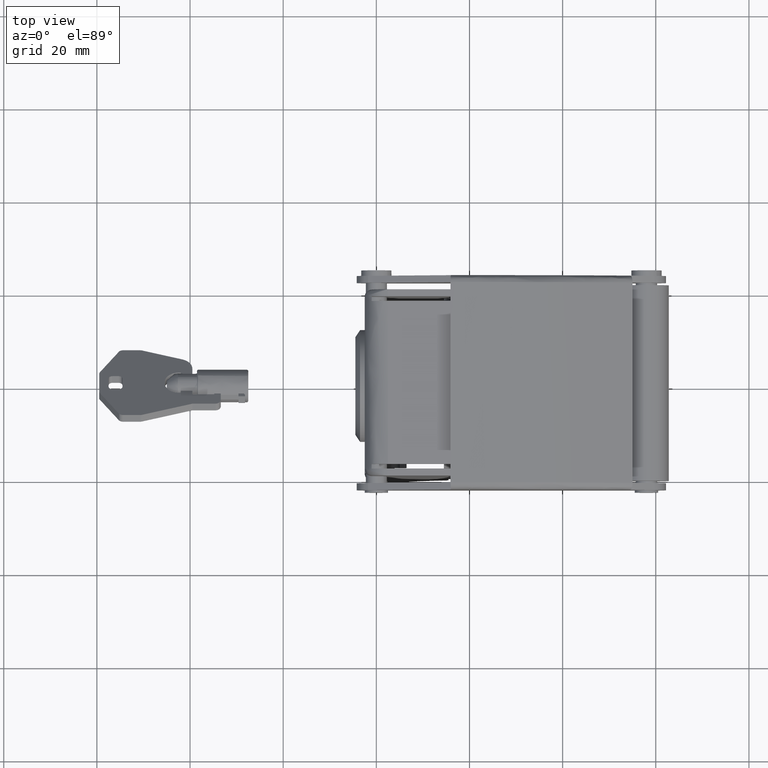
[diagram: clean part render]
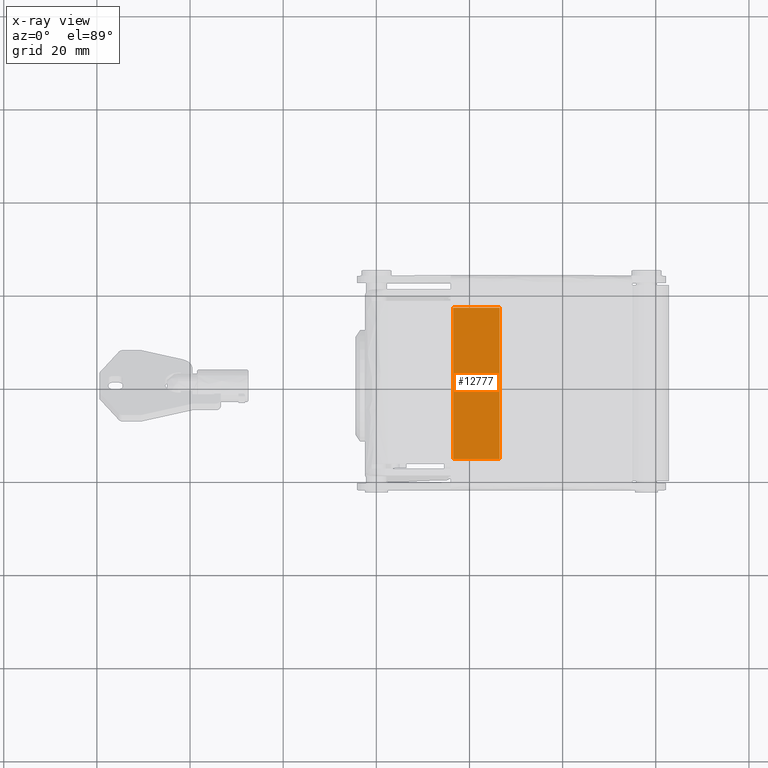
[diagram: x-ray — body ghosted, one internal face saturated and labeled with its STEP entity id]
A machine part, top view, then the same camera in x-ray: the body is ghosted and one INTERNAL B-rep face — a face not visible from any outside direction — is saturated and labeled: STEP entity #12777.
In plain terms, the highlighted face is a freeform B-spline surface patch.
Its self-contained STEP definition (entity closure, byte-faithful):
#11950=CARTESIAN_POINT('',(17.499776932377401,-16.249999999788500,-2.799992232599805));
#11951=VERTEX_POINT('',#11950);
#11980=CARTESIAN_POINT('',(26.499776932377351,-16.249999999992099,-2.799992232691465));
#11981=VERTEX_POINT('',#11980);
#11987=CARTESIAN_POINT('',(26.499776932377351,-16.249999999992099,-2.799992232691465));
#11988=CARTESIAN_POINT('',(17.499776932377401,-16.249999999788500,-2.799992232599805));
#11989=QUASI_UNIFORM_CURVE('',1,(#11987,#11988),.UNSPECIFIED.,.F.,.U.);
#11990=EDGE_CURVE('',#11981,#11951,#11989,.T.);
#12158=CARTESIAN_POINT('',(17.499776932377500,16.250000000007901,-2.799992232599805));
#12159=VERTEX_POINT('',#12158);
#12643=CARTESIAN_POINT('',(16.499774046851549,-16.249999999788500,-2.799992232599805));
#12644=VERTEX_POINT('',#12643);
#12645=CARTESIAN_POINT('',(16.499774046851549,-16.249999999788500,-2.799992232599805));
#12646=CARTESIAN_POINT('',(17.499776932377401,-16.249999999788500,-2.799992232599805));
#12647=QUASI_UNIFORM_CURVE('',1,(#12645,#12646),.UNSPECIFIED.,.F.,.U.);
#12648=EDGE_CURVE('',#12644,#11951,#12647,.T.);
#12685=CARTESIAN_POINT('',(16.499774046851549,16.250000000211500,-2.799992232599805));
#12686=VERTEX_POINT('',#12685);
#12700=CARTESIAN_POINT('',(16.499774046851549,16.250000000211500,-2.799992232599805));
#12701=CARTESIAN_POINT('',(17.499776932377500,16.250000000007901,-2.799992232599805));
#12702=QUASI_UNIFORM_CURVE('',1,(#12700,#12701),.UNSPECIFIED.,.F.,.U.);
#12703=EDGE_CURVE('',#12686,#12159,#12702,.T.);
#12717=CARTESIAN_POINT('',(26.499776932377351,16.250000000007901,-2.799992232599805));
#12718=VERTEX_POINT('',#12717);
#12724=CARTESIAN_POINT('',(26.499776932377351,-16.249999999992099,-2.799992232691465));
#12725=CARTESIAN_POINT('',(26.499776932377351,16.250000000007901,-2.799992232599805));
#12726=QUASI_UNIFORM_CURVE('',1,(#12724,#12725),.UNSPECIFIED.,.F.,.U.);
#12727=EDGE_CURVE('',#11981,#12718,#12726,.T.);
#12746=CARTESIAN_POINT('',(26.499776932377351,16.250000000007901,-2.799992232599805));
#12747=CARTESIAN_POINT('',(17.499776932377500,16.250000000007901,-2.799992232599805));
#12748=QUASI_UNIFORM_CURVE('',1,(#12746,#12747),.UNSPECIFIED.,.F.,.U.);
#12749=EDGE_CURVE('',#12718,#12159,#12748,.T.);
#12760=CARTESIAN_POINT('',(16.000273922101481,-17.873374937010968,-2.799992232599805));
#12761=CARTESIAN_POINT('',(26.999277325348402,-17.873374937010968,-2.799992232599805));
#12762=CARTESIAN_POINT('',(16.000273922101481,17.873375808948300,-2.799992232599805));
#12763=CARTESIAN_POINT('',(26.999277325348402,17.873375808948300,-2.799992232599805));
#12764=B_SPLINE_SURFACE_WITH_KNOTS('',1,1,((#12760,#12762),(#12761,#12763)),.UNSPECIFIED.,.F.,.F.,.U.,(2,2),(2,2),(0.0,10.999003403246920),(0.0,35.746750745959261),.UNSPECIFIED.);
#12765=ORIENTED_EDGE('',*,*,#12703,.F.);
#12766=CARTESIAN_POINT('',(16.499774046851549,16.250000000211500,-2.799992232599805));
#12767=CARTESIAN_POINT('',(16.499774046851549,-16.249999999788500,-2.799992232599805));
#12768=QUASI_UNIFORM_CURVE('',1,(#12766,#12767),.UNSPECIFIED.,.F.,.U.);
#12769=EDGE_CURVE('',#12686,#12644,#12768,.T.);
#12770=ORIENTED_EDGE('',*,*,#12769,.T.);
#12771=ORIENTED_EDGE('',*,*,#12648,.T.);
#12772=ORIENTED_EDGE('',*,*,#11990,.F.);
#12773=ORIENTED_EDGE('',*,*,#12727,.T.);
#12774=ORIENTED_EDGE('',*,*,#12749,.T.);
#12775=EDGE_LOOP('',(#12765,#12770,#12771,#12772,#12773,#12774));
#12776=FACE_OUTER_BOUND('',#12775,.T.);
#12777=ADVANCED_FACE('',(#12776),#12764,.T.);